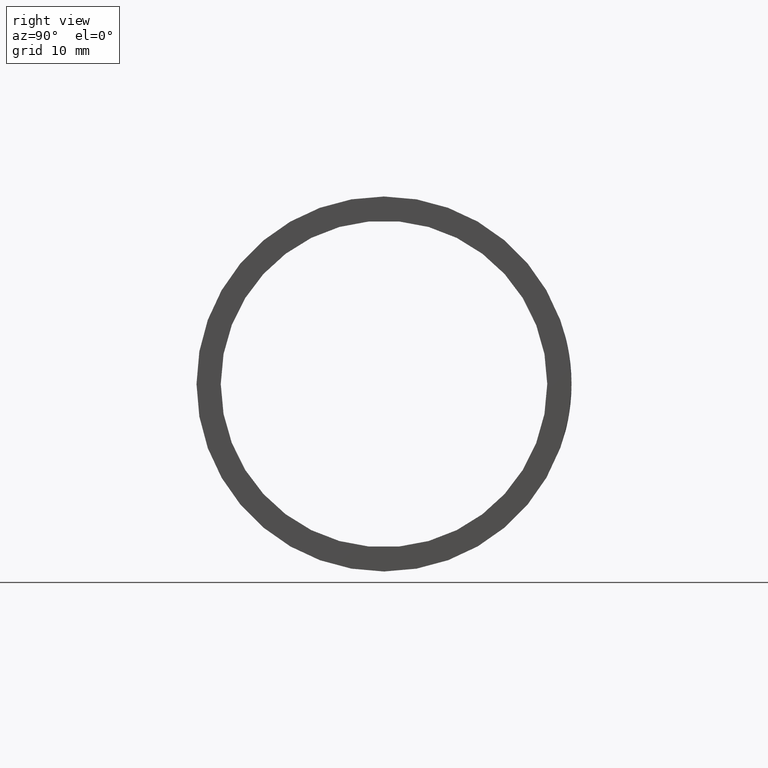
[diagram: clean part render]
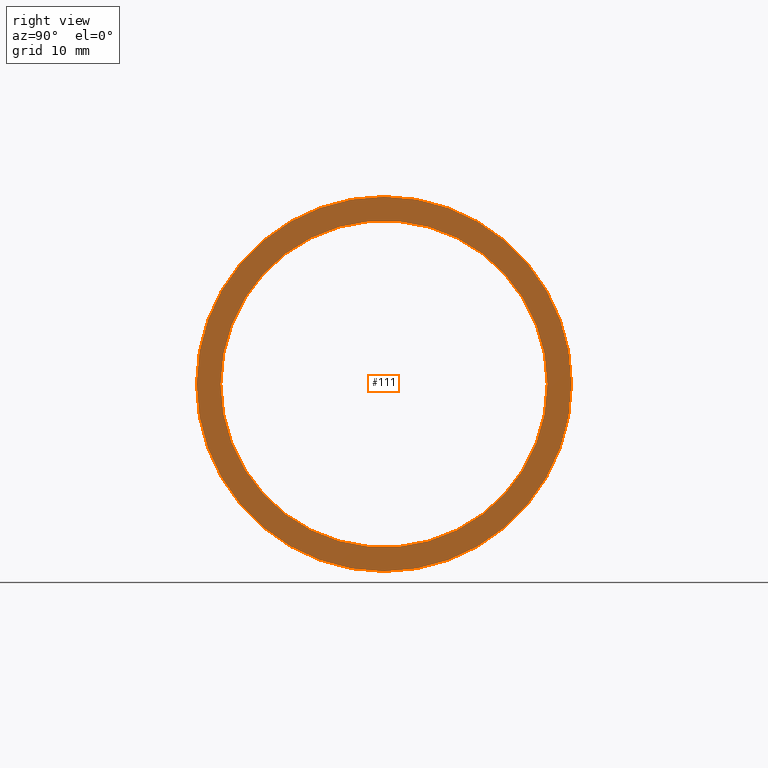
[diagram: same view with one face highlighted and labeled with its STEP entity id]
A machine part, right view. The second image highlights one B-rep face of the part: STEP entity #111.
In plain terms, the highlighted planar face has unit normal (-1, -0, 0).
Its self-contained STEP definition (entity closure, byte-faithful):
#3 = CARTESIAN_POINT ( 'NONE',  ( 40.49999999999999289, 26.25000000000001421, 0.000000000000000000 ) ) ;
#40 = EDGE_LOOP ( 'NONE', ( #438, #286 ) ) ;
#48 = CARTESIAN_POINT ( 'NONE',  ( 40.49999999999999289, 30.15000000000001634, 0.000000000000000000 ) ) ;
#54 = DIRECTION ( 'NONE',  ( -1.000000000000000000, -3.061616997868382648E-16, 0.000000000000000000 ) ) ;
#82 = CARTESIAN_POINT ( 'NONE',  ( 40.50000000000000000, 1.457329690985350156E-14, 0.000000000000000000 ) ) ;
#96 = DIRECTION ( 'NONE',  ( 3.061616997868382648E-16, -1.000000000000000000, 0.000000000000000000 ) ) ;
#99 = CARTESIAN_POINT ( 'NONE',  ( 40.50000000000000000, 1.457329690985350156E-14, 0.000000000000000000 ) ) ;
#111 = ADVANCED_FACE ( 'NONE', ( #368, #245 ), #455, .F. ) ;
#132 = ORIENTED_EDGE ( 'NONE', *, *, #479, .F. ) ;
#140 = EDGE_CURVE ( 'NONE', #491, #361, #425, .T. ) ;
#143 = DIRECTION ( 'NONE',  ( 2.301457347896261609E-16, -1.000000000000000000, 0.000000000000000000 ) ) ;
#157 = AXIS2_PLACEMENT_3D ( 'NONE', #503, #54, #184 ) ;
#159 = CARTESIAN_POINT ( 'NONE',  ( 40.50000000000000711, -26.24999999999998579, 3.214697847761801978E-15 ) ) ;
#176 = AXIS2_PLACEMENT_3D ( 'NONE', #237, #394, #318 ) ;
#184 = DIRECTION ( 'NONE',  ( 2.301457347896261609E-16, -1.000000000000000000, 0.000000000000000000 ) ) ;
#196 = EDGE_CURVE ( 'NONE', #443, #271, #451, .T. ) ;
#199 = AXIS2_PLACEMENT_3D ( 'NONE', #336, #337, #143 ) ;
#222 = DIRECTION ( 'NONE',  ( -1.000000000000000000, -3.061616997868382648E-16, 0.000000000000000000 ) ) ;
#224 = AXIS2_PLACEMENT_3D ( 'NONE', #99, #222, #466 ) ;
#233 = EDGE_LOOP ( 'NONE', ( #132, #304 ) ) ;
#237 = CARTESIAN_POINT ( 'NONE',  ( 40.50000000000000000, 1.457329690985350156E-14, 0.000000000000000000 ) ) ;
#245 = FACE_OUTER_BOUND ( 'NONE', #233, .T. ) ;
#271 = VERTEX_POINT ( 'NONE', #159 ) ;
#286 = ORIENTED_EDGE ( 'NONE', *, *, #348, .T. ) ;
#304 = ORIENTED_EDGE ( 'NONE', *, *, #140, .F. ) ;
#318 = DIRECTION ( 'NONE',  ( 2.643388153869420311E-16, -1.000000000000000000, 0.000000000000000000 ) ) ;
#336 = CARTESIAN_POINT ( 'NONE',  ( 40.50000000000000000, 1.457329690985350156E-14, 0.000000000000000000 ) ) ;
#337 = DIRECTION ( 'NONE',  ( -1.000000000000000000, -3.061616997868382648E-16, 0.000000000000000000 ) ) ;
#348 = EDGE_CURVE ( 'NONE', #271, #443, #396, .T. ) ;
#361 = VERTEX_POINT ( 'NONE', #48 ) ;
#364 = AXIS2_PLACEMENT_3D ( 'NONE', #82, #452, #96 ) ;
#368 = FACE_BOUND ( 'NONE', #40, .T. ) ;
#394 = DIRECTION ( 'NONE',  ( -1.000000000000000000, -3.061616997868382648E-16, 0.000000000000000000 ) ) ;
#396 = CIRCLE ( 'NONE', #176, 26.25000000000000000 ) ;
#420 = CARTESIAN_POINT ( 'NONE',  ( 40.50000000000000711, -30.14999999999998437, 3.692310099429270397E-15 ) ) ;
#425 = CIRCLE ( 'NONE', #199, 30.14999999999999858 ) ;
#438 = ORIENTED_EDGE ( 'NONE', *, *, #196, .T. ) ;
#443 = VERTEX_POINT ( 'NONE', #3 ) ;
#451 = CIRCLE ( 'NONE', #224, 26.25000000000000000 ) ;
#452 = DIRECTION ( 'NONE',  ( -1.000000000000000000, -3.061616997868382648E-16, 0.000000000000000000 ) ) ;
#455 = PLANE ( 'NONE',  #364 ) ;
#466 = DIRECTION ( 'NONE',  ( 2.643388153869420311E-16, -1.000000000000000000, 0.000000000000000000 ) ) ;
#468 = CIRCLE ( 'NONE', #157, 30.14999999999999858 ) ;
#479 = EDGE_CURVE ( 'NONE', #361, #491, #468, .T. ) ;
#491 = VERTEX_POINT ( 'NONE', #420 ) ;
#503 = CARTESIAN_POINT ( 'NONE',  ( 40.50000000000000000, 1.457329690985350156E-14, 0.000000000000000000 ) ) ;